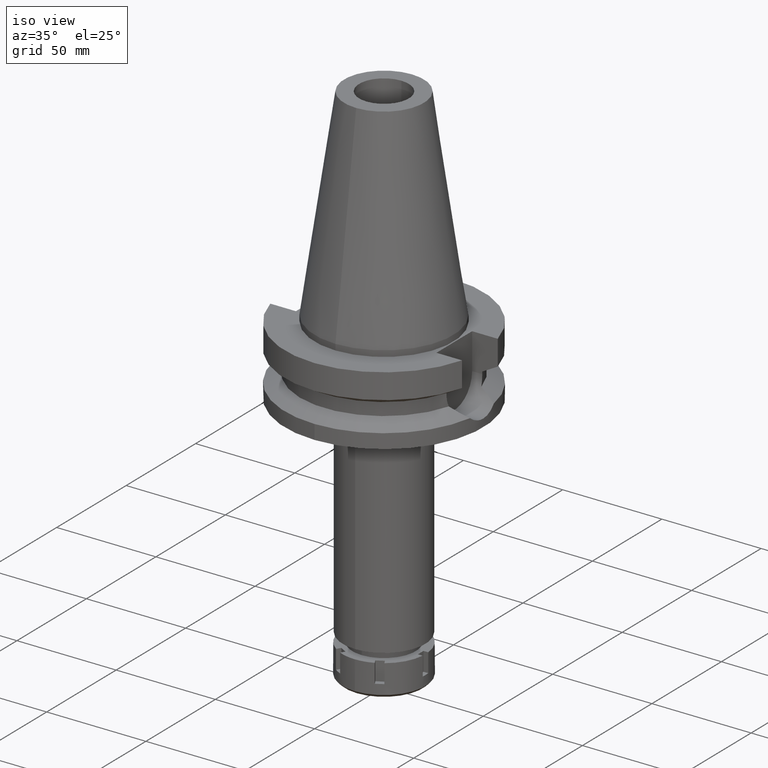
[diagram: clean part render]
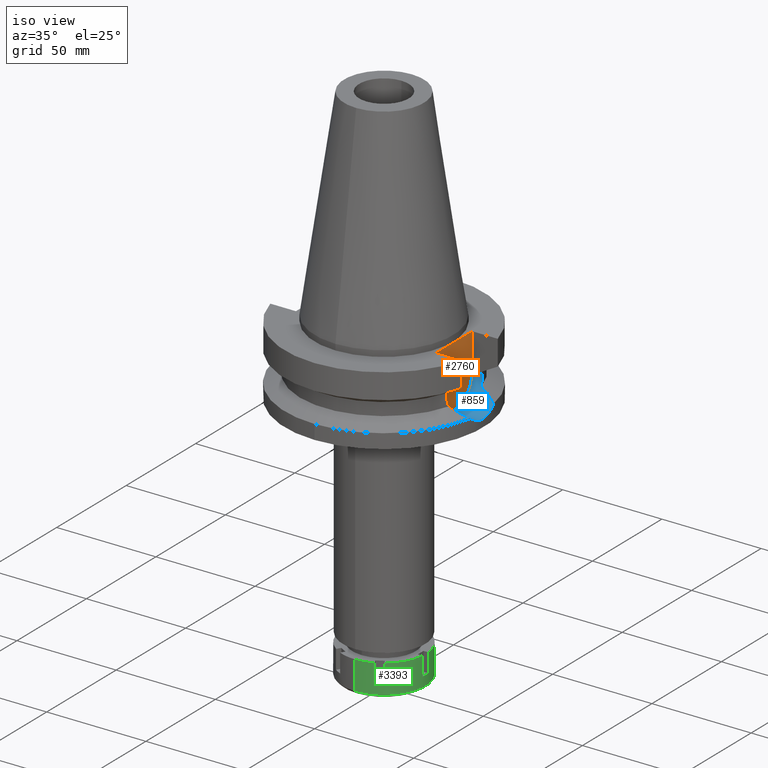
[diagram: same view with three faces highlighted in distinct colors, each labeled with its STEP entity id]
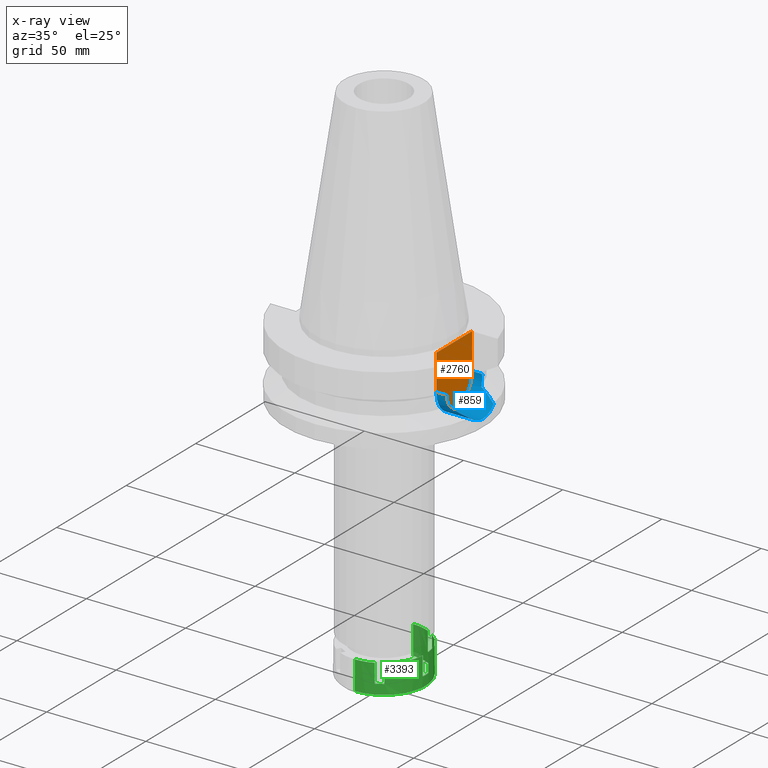
[diagram: x-ray of the same camera — body ghosted, the three highlighted faces saturated]
A machine part, iso view with three faces highlighted in distinct colors.
The next image is the same camera in x-ray (body ghosted, the three faces saturated) — at least one of them is partly hidden behind the body in this view.
Their STEP definitions:

[orange] entity #2760 — the highlighted planar face has unit normal (1, 0, 0).
#92 = CARTESIAN_POINT ( 'NONE',  ( 35.39999999999999858, -12.84999999999999964, -21.14999999999999858 ) ) ;
#288 = EDGE_CURVE ( 'NONE', #3317, #1250, #2770, .T. ) ;
#298 = AXIS2_PLACEMENT_3D ( 'NONE', #1757, #1990, #3159 ) ;
#355 = AXIS2_PLACEMENT_3D ( 'NONE', #2820, #3656, #1468 ) ;
#390 = EDGE_LOOP ( 'NONE', ( #3395, #2490, #2419, #2441 ) ) ;
#733 = EDGE_CURVE ( 'NONE', #1685, #1123, #2659, .T. ) ;
#872 = VECTOR ( 'NONE', #2377, 1000.000000000000000 ) ;
#1123 = VERTEX_POINT ( 'NONE', #2656 ) ;
#1250 = VERTEX_POINT ( 'NONE', #2449 ) ;
#1468 = DIRECTION ( 'NONE',  ( 0.0000000000000000000, 1.000000000000000000, 0.0000000000000000000 ) ) ;
#1685 = VERTEX_POINT ( 'NONE', #3187 ) ;
#1727 = PLANE ( 'NONE',  #355 ) ;
#1757 = CARTESIAN_POINT ( 'NONE',  ( 35.39999999999999858, 0.0000000000000000000, -21.14999999999999858 ) ) ;
#1923 = EDGE_CURVE ( 'NONE', #3317, #1123, #2798, .T. ) ;
#1990 = DIRECTION ( 'NONE',  ( -1.000000000000000000, 0.0000000000000000000, 0.0000000000000000000 ) ) ;
#2377 = DIRECTION ( 'NONE',  ( 0.0000000000000000000, 0.0000000000000000000, 1.000000000000000000 ) ) ;
#2419 = ORIENTED_EDGE ( 'NONE', *, *, #288, .F. ) ;
#2441 = ORIENTED_EDGE ( 'NONE', *, *, #1923, .T. ) ;
#2445 = CARTESIAN_POINT ( 'NONE',  ( 35.39999999999999858, 12.84999999999999964, -3.000000000000000000 ) ) ;
#2449 = CARTESIAN_POINT ( 'NONE',  ( 35.39999999999999858, 12.84999999999999964, -21.14999999999999858 ) ) ;
#2490 = ORIENTED_EDGE ( 'NONE', *, *, #3332, .F. ) ;
#2656 = CARTESIAN_POINT ( 'NONE',  ( 35.39999999999999858, -12.84999999999999964, -3.000000000000000000 ) ) ;
#2659 = LINE ( 'NONE', #92, #872 ) ;
#2760 = ADVANCED_FACE ( 'NONE', ( #3147 ), #1727, .T. ) ;
#2770 = LINE ( 'NONE', #3642, #3081 ) ;
#2798 = LINE ( 'NONE', #3423, #3501 ) ;
#2820 = CARTESIAN_POINT ( 'NONE',  ( 35.39999999999999858, 0.0000000000000000000, 0.0000000000000000000 ) ) ;
#3081 = VECTOR ( 'NONE', #3327, 1000.000000000000000 ) ;
#3147 = FACE_OUTER_BOUND ( 'NONE', #390, .T. ) ;
#3159 = DIRECTION ( 'NONE',  ( 0.0000000000000000000, 1.000000000000000000, 0.0000000000000000000 ) ) ;
#3187 = CARTESIAN_POINT ( 'NONE',  ( 35.39999999999999858, -12.84999999999999964, -21.14999999999999858 ) ) ;
#3219 = CIRCLE ( 'NONE', #298, 12.84999999999999964 ) ;
#3317 = VERTEX_POINT ( 'NONE', #2445 ) ;
#3327 = DIRECTION ( 'NONE',  ( 0.0000000000000000000, 0.0000000000000000000, -1.000000000000000000 ) ) ;
#3332 = EDGE_CURVE ( 'NONE', #1250, #1685, #3219, .T. ) ;
#3395 = ORIENTED_EDGE ( 'NONE', *, *, #733, .F. ) ;
#3405 = DIRECTION ( 'NONE',  ( 0.0000000000000000000, -1.000000000000000000, 0.0000000000000000000 ) ) ;
#3423 = CARTESIAN_POINT ( 'NONE',  ( 35.39999999999999858, 12.84999999999999964, -3.000000000000000000 ) ) ;
#3501 = VECTOR ( 'NONE', #3405, 1000.000000000000000 ) ;
#3642 = CARTESIAN_POINT ( 'NONE',  ( 35.39999999999999858, 12.84999999999999964, -3.000000000000000000 ) ) ;
#3656 = DIRECTION ( 'NONE',  ( 1.000000000000000000, 0.0000000000000000000, 0.0000000000000000000 ) ) ;

[blue] entity #859 — the highlighted cylindrical surface (edge-blend (fillet) strip) has radius 12.85 mm, axis along (1, 0, 0).
#4 = EDGE_CURVE ( 'NONE', #2066, #3361, #3668, .T. ) ;
#46 = CARTESIAN_POINT ( 'NONE',  ( 40.63720027269733492, 12.44499102500596699, -24.35263434037272035 ) ) ;
#52 = VECTOR ( 'NONE', #616, 1000.000000000000000 ) ;
#69 = CARTESIAN_POINT ( 'NONE',  ( 40.62483067706675399, 12.48524489601930476, -24.19332376313167998 ) ) ;
#72 = CARTESIAN_POINT ( 'NONE',  ( 44.08652366158886338, -10.82399127850445275, -28.07919682956623930 ) ) ;
#129 = EDGE_CURVE ( 'NONE', #1250, #3361, #1290, .T. ) ;
#134 = CARTESIAN_POINT ( 'NONE',  ( 49.79509525718310670, 4.521911686858223867, -33.17809616899294411 ) ) ;
#198 = CARTESIAN_POINT ( 'NONE',  ( 49.49360244385135843, 7.117060693934413429, -31.87766899412886090 ) ) ;
#211 = CARTESIAN_POINT ( 'NONE',  ( 40.85052569294000335, -11.72538061688000077, -26.40718074535000426 ) ) ;
#217 = CARTESIAN_POINT ( 'NONE',  ( 50.00000025975000284, 0.7410749818545950829, -34.00000000000000711 ) ) ;
#225 = CARTESIAN_POINT ( 'NONE',  ( 49.78849615495141734, -4.594160771162379753, -33.15068097418502191 ) ) ;
#271 = CARTESIAN_POINT ( 'NONE',  ( 40.65436025722827651, -12.39001373530014050, -24.66363152819931415 ) ) ;
#279 = AXIS2_PLACEMENT_3D ( 'NONE', #3661, #1624, #2755 ) ;
#298 = AXIS2_PLACEMENT_3D ( 'NONE', #1757, #1990, #3159 ) ;
#299 = VERTEX_POINT ( 'NONE', #211 ) ;
#331 = CARTESIAN_POINT ( 'NONE',  ( 40.85052569294000335, 11.72538061688000077, -26.40718074535000426 ) ) ;
#334 = CARTESIAN_POINT ( 'NONE',  ( 48.71889692592597498, 8.868007900456344572, -30.45890750410888614 ) ) ;
#424 = CARTESIAN_POINT ( 'NONE',  ( 49.86956621714999471, 3.608177968554155512, -33.48463145057419155 ) ) ;
#447 = CARTESIAN_POINT ( 'NONE',  ( 49.79052572487567119, -4.572062755420076563, -33.15911172841049392 ) ) ;
#473 = CYLINDRICAL_SURFACE ( 'NONE', #279, 12.85000000000000320 ) ;
#477 = CARTESIAN_POINT ( 'NONE',  ( 49.73972721055591251, 5.127761864821858140, -32.94800215639804009 ) ) ;
#484 = ORIENTED_EDGE ( 'NONE', *, *, #1984, .T. ) ;
#497 = CARTESIAN_POINT ( 'NONE',  ( 49.79239168047003972, 4.551645640510676216, -33.16686574697915546 ) ) ;
#511 = ORIENTED_EDGE ( 'NONE', *, *, #3387, .F. ) ;
#556 = CARTESIAN_POINT ( 'NONE',  ( 46.86891036847952563, 9.761100970900653095, -29.51020943516141060 ) ) ;
#611 = ORIENTED_EDGE ( 'NONE', *, *, #4, .T. ) ;
#616 = DIRECTION ( 'NONE',  ( -1.000000000000000000, -3.510427359434999885E-14, 0.0000000000000000000 ) ) ;
#641 = VERTEX_POINT ( 'NONE', #1266 ) ;
#694 = CARTESIAN_POINT ( 'NONE',  ( 50.00000025974999573, 1.774145817924999966E-14, -34.00000114470000057 ) ) ;
#724 = B_SPLINE_CURVE_WITH_KNOTS ( 'NONE', 3,
 ( #2347, #1509, #2937, #2640, #72, #1223, #2080, #3490, #936, #3211, #806, #2517, #828, #1903, #3350 ),
 .UNSPECIFIED., .F., .F.,
 ( 4, 2, 2, 1, 1, 1, 2, 2, 4 ),
 ( 0.0000000000000000000, 0.2500000000000003331, 0.3750000000000014988, 0.4375000000000023315, 0.4687500000000027756, 0.4843750000000040523, 0.4921875000000048295, 0.5000000000000055511, 1.000000000000000000 ),
 .UNSPECIFIED. ) ;
#800 = CARTESIAN_POINT ( 'NONE',  ( 50.00000025974999573, 1.774145817924999966E-14, -34.00000114470000057 ) ) ;
#806 = CARTESIAN_POINT ( 'NONE',  ( 45.45376346329539530, -10.33741897416011746, -28.78285341246331797 ) ) ;
#828 = CARTESIAN_POINT ( 'NONE',  ( 46.91867690740803454, -9.778675819256957169, -29.53630061612208024 ) ) ;
#859 = ADVANCED_FACE ( 'NONE', ( #2808 ), #473, .F. ) ;
#868 = CARTESIAN_POINT ( 'NONE',  ( 40.54944812473202376, -12.72805978480942457, -22.93052269365497864 ) ) ;
#878 = CARTESIAN_POINT ( 'NONE',  ( 45.65477777075565058, 10.26033523586332130, -28.88624133032739749 ) ) ;
#936 = CARTESIAN_POINT ( 'NONE',  ( 45.34795488205713809, -10.37743536144881595, -28.72843099741480088 ) ) ;
#977 = EDGE_CURVE ( 'NONE', #1702, #2066, #2129, .T. ) ;
#987 = CARTESIAN_POINT ( 'NONE',  ( 40.51083188481999287, 12.84999999999999964, -22.03309742073675537 ) ) ;
#1012 = CARTESIAN_POINT ( 'NONE',  ( 49.77979861138366857, -4.687619708294853638, -33.11458520024217478 ) ) ;
#1031 = CARTESIAN_POINT ( 'NONE',  ( 49.75680721488465252, -4.924372200396224031, -33.01927248158009576 ) ) ;
#1038 = CARTESIAN_POINT ( 'NONE',  ( 49.93043543702997766, 2.648726359074033088, -33.73005955313167448 ) ) ;
#1046 = CARTESIAN_POINT ( 'NONE',  ( 49.49360748612500771, -7.117022366528876987, -31.87769826589144984 ) ) ;
#1087 = CARTESIAN_POINT ( 'NONE',  ( 50.00000025975000995, -0.7410656251115338433, -34.00000000000000000 ) ) ;
#1113 = CARTESIAN_POINT ( 'NONE',  ( 40.51083188481999997, -12.84999999999999964, -21.14999999999999858 ) ) ;
#1202 = CARTESIAN_POINT ( 'NONE',  ( 48.13354550996827186, 9.173298141217253843, -30.15909107443265569 ) ) ;
#1223 = CARTESIAN_POINT ( 'NONE',  ( 44.62925775102691972, -10.63815907006330619, -28.35864658413995798 ) ) ;
#1238 = DIRECTION ( 'NONE',  ( 1.000000000000000000, -3.336643826789999529E-14, 0.0000000000000000000 ) ) ;
#1250 = VERTEX_POINT ( 'NONE', #2449 ) ;
#1262 = EDGE_CURVE ( 'NONE', #641, #3277, #2401, .T. ) ;
#1266 = CARTESIAN_POINT ( 'NONE',  ( 49.26250064874000145, -8.556052234130000045, -30.73730776426999967 ) ) ;
#1290 = LINE ( 'NONE', #3471, #2898 ) ;
#1326 = CARTESIAN_POINT ( 'NONE',  ( 49.79885500147746313, 4.480269389603221519, -33.19370440293146629 ) ) ;
#1364 = CARTESIAN_POINT ( 'NONE',  ( 49.38719044865590035, 7.838135701933852673, -31.37800184651396407 ) ) ;
#1436 = CARTESIAN_POINT ( 'NONE',  ( 45.52095493356967637, 10.31180833772056005, -28.81741746125721804 ) ) ;
#1454 = CARTESIAN_POINT ( 'NONE',  ( 40.74530521662314442, 12.08734525800560355, -25.53455946903086726 ) ) ;
#1492 = CARTESIAN_POINT ( 'NONE',  ( 45.58852645989720997, 10.28587793574028986, -28.85216961808750824 ) ) ;
#1509 = CARTESIAN_POINT ( 'NONE',  ( 41.72591166032965759, -11.52209110050590013, -26.86058858319618636 ) ) ;
#1524 = CARTESIAN_POINT ( 'NONE',  ( 40.60613812303787995, 12.54578004800032431, -23.92968102609641079 ) ) ;
#1579 = CARTESIAN_POINT ( 'NONE',  ( 40.61157027093148031, 12.52820949425047026, -24.00859467745382148 ) ) ;
#1600 = CARTESIAN_POINT ( 'NONE',  ( 49.91305551306805910, -3.031270827038059501, -33.66153124133568042 ) ) ;
#1624 = DIRECTION ( 'NONE',  ( 1.000000000000000000, 0.0000000000000000000, 0.0000000000000000000 ) ) ;
#1672 = CARTESIAN_POINT ( 'NONE',  ( 49.26250064874000145, -8.556052234130000045, -30.73730776426999967 ) ) ;
#1685 = VERTEX_POINT ( 'NONE', #3187 ) ;
#1694 = ORIENTED_EDGE ( 'NONE', *, *, #1262, .T. ) ;
#1702 = VERTEX_POINT ( 'NONE', #2162 ) ;
#1733 = CARTESIAN_POINT ( 'NONE',  ( 47.19289684631613824, 9.616051868880671094, -29.67652928504717025 ) ) ;
#1751 = CARTESIAN_POINT ( 'NONE',  ( 49.26250064874000145, 8.556052234130000045, -30.73730776426999967 ) ) ;
#1757 = CARTESIAN_POINT ( 'NONE',  ( 35.39999999999999858, 0.0000000000000000000, -21.14999999999999858 ) ) ;
#1766 = CARTESIAN_POINT ( 'NONE',  ( 40.68244639104836580, 12.29666286615228721, -24.88711474765173648 ) ) ;
#1768 = CARTESIAN_POINT ( 'NONE',  ( 42.60298043635962983, 11.31841078810769829, -27.31486803500052574 ) ) ;
#1807 = CARTESIAN_POINT ( 'NONE',  ( 40.60092910951219380, 12.56261850439502226, -23.85257851101207649 ) ) ;
#1850 = CARTESIAN_POINT ( 'NONE',  ( 49.79347438492521860, 4.539752812145889216, -33.17136368397172674 ) ) ;
#1878 = CARTESIAN_POINT ( 'NONE',  ( 49.78971523551513911, -4.580896941077138962, -33.15574468994640256 ) ) ;
#1884 = CARTESIAN_POINT ( 'NONE',  ( 49.84837068522750059, 3.895670753622818339, -33.39815263638099196 ) ) ;
#1892 = CARTESIAN_POINT ( 'NONE',  ( 49.66531577319440061, -5.772453008917752371, -32.63570655734203996 ) ) ;
#1903 = CARTESIAN_POINT ( 'NONE',  ( 48.17421731096948179, -9.180580984649372667, -30.17995623842555730 ) ) ;
#1940 = CARTESIAN_POINT ( 'NONE',  ( 40.85052569294000335, 11.72538061688000077, -26.40718074535000426 ) ) ;
#1956 = CARTESIAN_POINT ( 'NONE',  ( 40.51818735908894098, -12.82722126774884330, -22.03688626222736602 ) ) ;
#1968 = CARTESIAN_POINT ( 'NONE',  ( 44.15277387009012244, 10.83389904101250600, -28.11372406847988259 ) ) ;
#1984 = EDGE_CURVE ( 'NONE', #2259, #299, #3592, .T. ) ;
#1990 = DIRECTION ( 'NONE',  ( -1.000000000000000000, 0.0000000000000000000, 0.0000000000000000000 ) ) ;
#1992 = CARTESIAN_POINT ( 'NONE',  ( 40.51083188482000708, -12.85000000000000320, -21.59155125908098327 ) ) ;
#2036 = CARTESIAN_POINT ( 'NONE',  ( 40.79434733663426726, 11.92110265460875951, -25.97065107314824317 ) ) ;
#2066 = VERTEX_POINT ( 'NONE', #1940 ) ;
#2080 = CARTESIAN_POINT ( 'NONE',  ( 44.89588290465827214, -10.54427413037512906, -28.49587143876511419 ) ) ;
#2129 = B_SPLINE_CURVE_WITH_KNOTS ( 'NONE', 3,
 ( #1751, #334, #1202, #1733, #556, #3106, #3432, #2260, #878, #1492, #2277, #1436, #1968, #1768, #3416 ),
 .UNSPECIFIED., .F., .F.,
 ( 4, 2, 2, 1, 1, 1, 2, 2, 4 ),
 ( 0.0000000000000000000, 0.2499999999999670264, 0.3749999999999510947, 0.4374999999999431011, 0.4687499999999392153, 0.4843749999999383826, 0.4921874999999378275, 0.4999999999999372724, 1.000000000000000000 ),
 .UNSPECIFIED. ) ;
#2162 = CARTESIAN_POINT ( 'NONE',  ( 49.26250064874000145, 8.556052234130000045, -30.73730776426999967 ) ) ;
#2166 = CARTESIAN_POINT ( 'NONE',  ( 49.86088866505888717, -3.802344464582331440, -33.45151160997993145 ) ) ;
#2193 = B_SPLINE_CURVE_WITH_KNOTS ( 'NONE', 3,
 ( #2459, #217, #3043, #1038, #3060, #424, #1884, #2999, #2775, #1326, #134, #1850, #497, #3316, #477, #2702, #198, #1364, #3259 ),
 .UNSPECIFIED., .F., .F.,
 ( 4, 2, 2, 1, 1, 1, 1, 1, 2, 2, 2, 4 ),
 ( 0.0000000000000000000, 0.2499999999999408806, 0.3749999999999113487, 0.4374999999998964162, 0.4687499999998889777, 0.4843749999998849254, 0.4921874999998825384, 0.4960937499998818723, 0.4980468749998815947, 0.4999999999998813727, 0.7499999999999406031, 1.000000000000000000 ),
 .UNSPECIFIED. ) ;
#2216 = EDGE_CURVE ( 'NONE', #3277, #1702, #2193, .T. ) ;
#2222 = CARTESIAN_POINT ( 'NONE',  ( 49.62581554086832369, -6.100699783330162163, -32.46623685312815155 ) ) ;
#2249 = CARTESIAN_POINT ( 'NONE',  ( 40.59188576338534915, -12.59181613888018880, -23.71309950369803587 ) ) ;
#2259 = VERTEX_POINT ( 'NONE', #2417 ) ;
#2260 = CARTESIAN_POINT ( 'NONE',  ( 45.80850800889532337, 10.20045534850263813, -28.96529400805786025 ) ) ;
#2277 = CARTESIAN_POINT ( 'NONE',  ( 45.54427738086176447, 10.30287947436299945, -28.82941249520358795 ) ) ;
#2284 = CARTESIAN_POINT ( 'NONE',  ( 40.59544857123437112, -12.58031941218523286, -23.76894563300123053 ) ) ;
#2314 = CARTESIAN_POINT ( 'NONE',  ( 40.51083188481999997, 12.84999999999999964, -21.14999999999999858 ) ) ;
#2347 = CARTESIAN_POINT ( 'NONE',  ( 40.85052569294000335, -11.72538061688000077, -26.40718074535000426 ) ) ;
#2389 = CARTESIAN_POINT ( 'NONE',  ( 40.60257244295487311, 12.55730800210168496, -23.87713024258036754 ) ) ;
#2401 = B_SPLINE_CURVE_WITH_KNOTS ( 'NONE', 3,
 ( #1672, #3010, #1046, #2222, #1892, #2767, #2784, #1031, #3082, #1012, #3325, #225, #1878, #447, #3290, #2166, #1600, #3637, #1087, #800 ),
 .UNSPECIFIED., .F., .F.,
 ( 4, 2, 2, 2, 1, 1, 1, 1, 2, 2, 2, 4 ),
 ( 0.0000000000000000000, 0.2499999999999404365, 0.3749999999999105715, 0.4374999999998954725, 0.4687499999998887557, 0.4843749999998845923, 0.4921874999998832045, 0.4960937499998826494, 0.4980468749998828715, 0.4999999999998832045, 0.7499999999999416023, 1.000000000000000000 ),
 .UNSPECIFIED. ) ;
#2417 = CARTESIAN_POINT ( 'NONE',  ( 40.51083188481999997, -12.84999999999999964, -21.14999999999999858 ) ) ;
#2449 = CARTESIAN_POINT ( 'NONE',  ( 35.39999999999999858, 12.84999999999999964, -21.14999999999999858 ) ) ;
#2459 = CARTESIAN_POINT ( 'NONE',  ( 50.00000025974999573, 1.774145817924999966E-14, -34.00000114470000057 ) ) ;
#2477 = ORIENTED_EDGE ( 'NONE', *, *, #2216, .T. ) ;
#2493 = EDGE_CURVE ( 'NONE', #299, #641, #724, .T. ) ;
#2517 = CARTESIAN_POINT ( 'NONE',  ( 45.47364822759700331, -10.32986049036476572, -28.79308085105692072 ) ) ;
#2556 = CARTESIAN_POINT ( 'NONE',  ( 40.54025378189582085, -12.75731467226962046, -22.70686882111924731 ) ) ;
#2571 = CARTESIAN_POINT ( 'NONE',  ( 40.51083188481999997, -12.84999999999999964, -21.14999999999999858 ) ) ;
#2582 = CARTESIAN_POINT ( 'NONE',  ( 40.66327750826377496, 12.35976744503744662, -24.67240287687921452 ) ) ;
#2640 = CARTESIAN_POINT ( 'NONE',  ( 43.71205589239633582, -10.94529851844949953, -27.88622673543954278 ) ) ;
#2665 = ORIENTED_EDGE ( 'NONE', *, *, #2493, .T. ) ;
#2702 = CARTESIAN_POINT ( 'NONE',  ( 49.66987082480136451, 5.762061220520697802, -32.66234491577243659 ) ) ;
#2755 = DIRECTION ( 'NONE',  ( 0.0000000000000000000, 0.0000000000000000000, -1.000000000000000000 ) ) ;
#2767 = CARTESIAN_POINT ( 'NONE',  ( 49.71771244280093782, -5.301720187127436645, -32.85659238518145742 ) ) ;
#2775 = CARTESIAN_POINT ( 'NONE',  ( 49.80628532616985638, 4.396934166595673155, -33.22451764728783274 ) ) ;
#2784 = CARTESIAN_POINT ( 'NONE',  ( 49.73403571952268720, -5.148397096957767261, -32.92466732320522738 ) ) ;
#2808 = FACE_OUTER_BOUND ( 'NONE', #3201, .T. ) ;
#2816 = CARTESIAN_POINT ( 'NONE',  ( 40.59737061726059437, -12.57411364517637331, -23.79856269430915816 ) ) ;
#2852 = CARTESIAN_POINT ( 'NONE',  ( 40.57496242610245929, -12.64633064314174860, -23.43373649586409613 ) ) ;
#2898 = VECTOR ( 'NONE', #1238, 1000.000000000000000 ) ;
#2937 = CARTESIAN_POINT ( 'NONE',  ( 42.55071745611744660, -11.29929319511106023, -27.28707702801668233 ) ) ;
#2963 = ORIENTED_EDGE ( 'NONE', *, *, #977, .T. ) ;
#2990 = CARTESIAN_POINT ( 'NONE',  ( 40.51083188481999997, 12.84999999999999964, -21.14999999999999858 ) ) ;
#2999 = CARTESIAN_POINT ( 'NONE',  ( 49.82078931996939275, 4.230072290529120593, -33.28453423720266358 ) ) ;
#3010 = CARTESIAN_POINT ( 'NONE',  ( 49.38719230594260523, -7.838125008374380975, -31.37801138982431581 ) ) ;
#3041 = ORIENTED_EDGE ( 'NONE', *, *, #129, .F. ) ;
#3043 = CARTESIAN_POINT ( 'NONE',  ( 49.98260905406998234, 1.500665619138225049, -33.93573820480884962 ) ) ;
#3060 = CARTESIAN_POINT ( 'NONE',  ( 49.90869642992999644, 3.032807479149022267, -33.64331436775012918 ) ) ;
#3082 = CARTESIAN_POINT ( 'NONE',  ( 49.76776460763550602, -4.813848197125325079, -33.06469792018418019 ) ) ;
#3094 = CARTESIAN_POINT ( 'NONE',  ( 40.58662774857591415, -12.60877356366929369, -23.62931612648331026 ) ) ;
#3106 = CARTESIAN_POINT ( 'NONE',  ( 46.36727526679569422, 9.974179417351670907, -29.25251000872249207 ) ) ;
#3145 = CARTESIAN_POINT ( 'NONE',  ( 40.73816962952578535, -12.11682243061658859, -25.53412644538607523 ) ) ;
#3159 = DIRECTION ( 'NONE',  ( 0.0000000000000000000, 1.000000000000000000, 0.0000000000000000000 ) ) ;
#3187 = CARTESIAN_POINT ( 'NONE',  ( 35.39999999999999858, -12.84999999999999964, -21.14999999999999858 ) ) ;
#3201 = EDGE_LOOP ( 'NONE', ( #2963, #611, #3041, #3355, #511, #484, #2665, #1694, #2477 ) ) ;
#3211 = CARTESIAN_POINT ( 'NONE',  ( 45.41149930443869920, -10.35343463059610514, -28.76111513600022462 ) ) ;
#3219 = CIRCLE ( 'NONE', #298, 12.84999999999999964 ) ;
#3248 = CARTESIAN_POINT ( 'NONE',  ( 40.54025138676031759, 12.75862549541255042, -22.93152005434224705 ) ) ;
#3259 = CARTESIAN_POINT ( 'NONE',  ( 49.26250064874000145, 8.556052234130000045, -30.73730776426999967 ) ) ;
#3277 = VERTEX_POINT ( 'NONE', #694 ) ;
#3290 = CARTESIAN_POINT ( 'NONE',  ( 49.79078946304657194, -4.569185635706867643, -33.16020745295149652 ) ) ;
#3316 = CARTESIAN_POINT ( 'NONE',  ( 49.79170874925432599, 4.559128567776709495, -33.16402800635088965 ) ) ;
#3325 = CARTESIAN_POINT ( 'NONE',  ( 49.78562820797583299, -4.625197376720444176, -33.13877319678256583 ) ) ;
#3332 = EDGE_CURVE ( 'NONE', #1250, #1685, #3219, .T. ) ;
#3350 = CARTESIAN_POINT ( 'NONE',  ( 49.26250064874000145, -8.556052234130000045, -30.73730776426999967 ) ) ;
#3355 = ORIENTED_EDGE ( 'NONE', *, *, #3332, .T. ) ;
#3361 = VERTEX_POINT ( 'NONE', #2314 ) ;
#3386 = CARTESIAN_POINT ( 'NONE',  ( 40.85052569294000335, -11.72538061688000077, -26.40718074535000426 ) ) ;
#3387 = EDGE_CURVE ( 'NONE', #2259, #1685, #3421, .T. ) ;
#3416 = CARTESIAN_POINT ( 'NONE',  ( 40.85052569294000335, 11.72538061688000077, -26.40718074535000426 ) ) ;
#3421 = LINE ( 'NONE', #2571, #52 ) ;
#3432 = CARTESIAN_POINT ( 'NONE',  ( 46.11254386972156283, 10.07959440270284723, -29.12160614239724765 ) ) ;
#3471 = CARTESIAN_POINT ( 'NONE',  ( 35.39999999999999858, 12.84999999999999964, -21.14999999999999858 ) ) ;
#3490 = CARTESIAN_POINT ( 'NONE',  ( 45.19864727449142094, -10.43327437534391677, -28.65163018592970445 ) ) ;
#3592 = B_SPLINE_CURVE_WITH_KNOTS ( 'NONE', 3,
 ( #1113, #1992, #1956, #2556, #868, #3669, #2852, #3094, #2249, #2284, #2816, #271, #3145, #3386 ),
 .UNSPECIFIED., .F., .F.,
 ( 4, 2, 2, 1, 1, 2, 2, 4 ),
 ( 0.0000000000000000000, 0.2499999999999948375, 0.3749999999999922839, 0.4374999999999911182, 0.4687499999999904521, 0.4843749999999901745, 0.4999999999999898970, 1.000000000000000000 ),
 .UNSPECIFIED. ) ;
#3637 = CARTESIAN_POINT ( 'NONE',  ( 49.98261131041361693, -1.500624886538419744, -33.93573978226026355 ) ) ;
#3661 = CARTESIAN_POINT ( 'NONE',  ( 35.39999999999999858, 0.0000000000000000000, -21.14999999999999858 ) ) ;
#3668 = B_SPLINE_CURVE_WITH_KNOTS ( 'NONE', 3,
 ( #331, #2036, #1454, #1766, #2582, #46, #69, #1579, #1524, #2389, #1807, #3248, #987, #2990 ),
 .UNSPECIFIED., .F., .F.,
 ( 4, 2, 2, 1, 1, 2, 2, 4 ),
 ( 0.0000000000000000000, 0.2499999999999920619, 0.3749999999999889533, 0.4374999999999874545, 0.4687499999999865663, 0.4843749999999859557, 0.4999999999999853451, 1.000000000000000000 ),
 .UNSPECIFIED. ) ;
#3669 = CARTESIAN_POINT ( 'NONE',  ( 40.56599794183718899, -12.67508828627306450, -23.26599944996664959 ) ) ;

[green] entity #3393 — the highlighted cylindrical surface (partial cylindrical patch) has radius 21 mm, axis along (0, 0, -1).
#7 = CARTESIAN_POINT ( 'NONE',  ( 0.0000000000000000000, -21.00000000000000000, -14.50000000000000000 ) ) ;
#9 = VERTEX_POINT ( 'NONE', #973 ) ;
#13 = DIRECTION ( 'NONE',  ( 0.0000000000000000000, 0.0000000000000000000, 1.000000000000000000 ) ) ;
#45 = ORIENTED_EDGE ( 'NONE', *, *, #3617, .F. ) ;
#96 = ORIENTED_EDGE ( 'NONE', *, *, #1422, .T. ) ;
#112 = AXIS2_PLACEMENT_3D ( 'NONE', #1979, #3096, #3115 ) ;
#115 = DIRECTION ( 'NONE',  ( 0.0000000000000000000, 0.0000000000000000000, -1.000000000000000000 ) ) ;
#116 = AXIS2_PLACEMENT_3D ( 'NONE', #1272, #1575, #1614 ) ;
#136 = DIRECTION ( 'NONE',  ( 0.4152486510768949035, -0.9097079519157886818, 0.0000000000000000000 ) ) ;
#149 = AXIS2_PLACEMENT_3D ( 'NONE', #3009, #2151, #780 ) ;
#153 = EDGE_CURVE ( 'NONE', #437, #3178, #3232, .T. ) ;
#165 = VERTEX_POINT ( 'NONE', #1540 ) ;
#174 = CARTESIAN_POINT ( 'NONE',  ( 12.18432328774999895, 17.10386699022999935, 0.0000000000000000000 ) ) ;
#224 = EDGE_CURVE ( 'NONE', #764, #2058, #3069, .T. ) ;
#244 = ORIENTED_EDGE ( 'NONE', *, *, #617, .F. ) ;
#259 = DIRECTION ( 'NONE',  ( 0.4152486510768949035, 0.9097079519157886818, 0.0000000000000000000 ) ) ;
#404 = CIRCLE ( 'NONE', #751, 21.00000000000000711 ) ;
#433 = EDGE_CURVE ( 'NONE', #1845, #2829, #2965, .T. ) ;
#437 = VERTEX_POINT ( 'NONE', #3008 ) ;
#457 = AXIS2_PLACEMENT_3D ( 'NONE', #1478, #1736, #1151 ) ;
#517 = DIRECTION ( 'NONE',  ( 0.0000000000000000000, 0.0000000000000000000, 1.000000000000000000 ) ) ;
#521 = ORIENTED_EDGE ( 'NONE', *, *, #1117, .T. ) ;
#547 = CARTESIAN_POINT ( 'NONE',  ( 8.720221672615000585, -19.10386699022999935, -9.500000000000000000 ) ) ;
#571 = CARTESIAN_POINT ( 'NONE',  ( 0.0000000000000000000, 0.0000000000000000000, -9.500000000000000000 ) ) ;
#602 = EDGE_CURVE ( 'NONE', #2881, #1750, #3322, .T. ) ;
#617 = EDGE_CURVE ( 'NONE', #1845, #9, #885, .T. ) ;
#666 = ORIENTED_EDGE ( 'NONE', *, *, #3236, .T. ) ;
#690 = VERTEX_POINT ( 'NONE', #994 ) ;
#718 = CARTESIAN_POINT ( 'NONE',  ( 0.0000000000000000000, 0.0000000000000000000, 0.0000000000000000000 ) ) ;
#730 = CARTESIAN_POINT ( 'NONE',  ( 0.0000000000000000000, 0.0000000000000000000, 0.0000000000000000000 ) ) ;
#751 = AXIS2_PLACEMENT_3D ( 'NONE', #571, #3426, #259 ) ;
#764 = VERTEX_POINT ( 'NONE', #174 ) ;
#780 = DIRECTION ( 'NONE',  ( 0.9954545219222313834, 0.09523809523810303213, 0.0000000000000000000 ) ) ;
#829 = DIRECTION ( 'NONE',  ( 0.0000000000000000000, 0.0000000000000000000, -1.000000000000000000 ) ) ;
#857 = VERTEX_POINT ( 'NONE', #3036 ) ;
#858 = ORIENTED_EDGE ( 'NONE', *, *, #153, .F. ) ;
#885 = LINE ( 'NONE', #2022, #1662 ) ;
#959 = AXIS2_PLACEMENT_3D ( 'NONE', #2551, #3695, #1798 ) ;
#973 = CARTESIAN_POINT ( 'NONE',  ( 0.0000000000000000000, 21.00000000000000000, -14.50000000000000000 ) ) ;
#992 = VECTOR ( 'NONE', #2951, 1000.000000000000000 ) ;
#994 = CARTESIAN_POINT ( 'NONE',  ( 20.90454496036999998, -2.000000000000000000, -9.500000000000000000 ) ) ;
#1022 = DIRECTION ( 'NONE',  ( 0.0000000000000000000, 0.0000000000000000000, 1.000000000000000000 ) ) ;
#1034 = CARTESIAN_POINT ( 'NONE',  ( 12.18432328774999895, 17.10386699022999935, 0.0000000000000000000 ) ) ;
#1048 = VERTEX_POINT ( 'NONE', #2935 ) ;
#1061 = CARTESIAN_POINT ( 'NONE',  ( 0.0000000000000000000, 21.00000000000000000, 0.0000000000000000000 ) ) ;
#1098 = CARTESIAN_POINT ( 'NONE',  ( 12.18432328774999895, 17.10386699022999935, -9.500000000000000000 ) ) ;
#1100 = CARTESIAN_POINT ( 'NONE',  ( 8.720221672615000585, 19.10386699022999935, 0.0000000000000000000 ) ) ;
#1117 = EDGE_CURVE ( 'NONE', #764, #165, #3323, .T. ) ;
#1151 = DIRECTION ( 'NONE',  ( 0.9954545219222313834, -0.09523809523810303213, 0.0000000000000000000 ) ) ;
#1211 = ORIENTED_EDGE ( 'NONE', *, *, #2456, .F. ) ;
#1260 = CARTESIAN_POINT ( 'NONE',  ( 8.720221672615000585, -19.10386699022999935, 0.0000000000000000000 ) ) ;
#1272 = CARTESIAN_POINT ( 'NONE',  ( 0.0000000000000000000, 0.0000000000000000000, -14.50000000000000000 ) ) ;
#1286 = LINE ( 'NONE', #2177, #3635 ) ;
#1289 = CIRCLE ( 'NONE', #149, 20.99999999999999289 ) ;
#1296 = ORIENTED_EDGE ( 'NONE', *, *, #2577, .T. ) ;
#1327 = ORIENTED_EDGE ( 'NONE', *, *, #2828, .F. ) ;
#1362 = AXIS2_PLACEMENT_3D ( 'NONE', #718, #2972, #2393 ) ;
#1394 = VERTEX_POINT ( 'NONE', #7 ) ;
#1422 = EDGE_CURVE ( 'NONE', #1423, #2058, #404, .T. ) ;
#1423 = VERTEX_POINT ( 'NONE', #2594 ) ;
#1439 = FACE_OUTER_BOUND ( 'NONE', #3070, .T. ) ;
#1449 = CARTESIAN_POINT ( 'NONE',  ( 8.720221672615000585, 19.10386699022999935, -9.500000000000000000 ) ) ;
#1478 = CARTESIAN_POINT ( 'NONE',  ( 0.0000000000000000000, 0.0000000000000000000, 0.0000000000000000000 ) ) ;
#1484 = VECTOR ( 'NONE', #2527, 1000.000000000000000 ) ;
#1536 = VECTOR ( 'NONE', #13, 1000.000000000000000 ) ;
#1540 = CARTESIAN_POINT ( 'NONE',  ( 20.90454496036999998, 2.000000000000000000, 0.0000000000000000000 ) ) ;
#1575 = DIRECTION ( 'NONE',  ( 0.0000000000000000000, 0.0000000000000000000, 1.000000000000000000 ) ) ;
#1583 = DIRECTION ( 'NONE',  ( 0.0000000000000000000, 0.0000000000000000000, -1.000000000000000000 ) ) ;
#1614 = DIRECTION ( 'NONE',  ( 0.0000000000000000000, -1.000000000000000000, 0.0000000000000000000 ) ) ;
#1662 = VECTOR ( 'NONE', #3158, 1000.000000000000000 ) ;
#1725 = AXIS2_PLACEMENT_3D ( 'NONE', #1841, #1583, #2638 ) ;
#1734 = CARTESIAN_POINT ( 'NONE',  ( 12.18432328774999895, -17.10386699022999935, -9.500000000000000000 ) ) ;
#1736 = DIRECTION ( 'NONE',  ( 0.0000000000000000000, 0.0000000000000000000, -1.000000000000000000 ) ) ;
#1750 = VERTEX_POINT ( 'NONE', #3320 ) ;
#1798 = DIRECTION ( 'NONE',  ( 0.0000000000000000000, -1.000000000000000000, 0.0000000000000000000 ) ) ;
#1801 = CIRCLE ( 'NONE', #112, 21.00000000000000711 ) ;
#1826 = ORIENTED_EDGE ( 'NONE', *, *, #3240, .T. ) ;
#1841 = CARTESIAN_POINT ( 'NONE',  ( 0.0000000000000000000, 0.0000000000000000000, 0.0000000000000000000 ) ) ;
#1845 = VERTEX_POINT ( 'NONE', #1061 ) ;
#1910 = VECTOR ( 'NONE', #517, 1000.000000000000000 ) ;
#1979 = CARTESIAN_POINT ( 'NONE',  ( 0.0000000000000000000, 0.0000000000000000000, -9.500000000000000000 ) ) ;
#2022 = CARTESIAN_POINT ( 'NONE',  ( 0.0000000000000000000, 21.00000000000000000, 0.0000000000000000000 ) ) ;
#2042 = CYLINDRICAL_SURFACE ( 'NONE', #959, 21.00000000000000000 ) ;
#2058 = VERTEX_POINT ( 'NONE', #1098 ) ;
#2120 = LINE ( 'NONE', #2157, #2925 ) ;
#2151 = DIRECTION ( 'NONE',  ( 0.0000000000000000000, 0.0000000000000000000, -1.000000000000000000 ) ) ;
#2157 = CARTESIAN_POINT ( 'NONE',  ( 20.90454496036999998, -2.000000000000000000, 0.0000000000000000000 ) ) ;
#2177 = CARTESIAN_POINT ( 'NONE',  ( 0.0000000000000000000, -21.00000000000000000, 0.0000000000000000000 ) ) ;
#2196 = CARTESIAN_POINT ( 'NONE',  ( 20.90454496036999998, 2.000000000000000000, -9.500000000000000000 ) ) ;
#2286 = CARTESIAN_POINT ( 'NONE',  ( 20.90454496036999998, -2.000000000000000000, 0.0000000000000000000 ) ) ;
#2294 = CARTESIAN_POINT ( 'NONE',  ( 0.0000000000000000000, -21.00000000000000000, 0.0000000000000000000 ) ) ;
#2315 = EDGE_CURVE ( 'NONE', #857, #165, #3573, .T. ) ;
#2316 = ORIENTED_EDGE ( 'NONE', *, *, #224, .F. ) ;
#2352 = ORIENTED_EDGE ( 'NONE', *, *, #2315, .F. ) ;
#2393 = DIRECTION ( 'NONE',  ( 0.0000000000000000000, 1.000000000000000000, 0.0000000000000000000 ) ) ;
#2456 = EDGE_CURVE ( 'NONE', #1048, #1750, #2880, .T. ) ;
#2474 = VERTEX_POINT ( 'NONE', #2294 ) ;
#2527 = DIRECTION ( 'NONE',  ( 0.0000000000000000000, 0.0000000000000000000, -1.000000000000000000 ) ) ;
#2534 = ORIENTED_EDGE ( 'NONE', *, *, #433, .T. ) ;
#2548 = ORIENTED_EDGE ( 'NONE', *, *, #2878, .T. ) ;
#2551 = CARTESIAN_POINT ( 'NONE',  ( 0.0000000000000000000, 0.0000000000000000000, 0.0000000000000000000 ) ) ;
#2577 = EDGE_CURVE ( 'NONE', #857, #690, #1289, .T. ) ;
#2594 = CARTESIAN_POINT ( 'NONE',  ( 8.720221672615998898, 19.10386699022999935, -9.500000000000000000 ) ) ;
#2628 = CIRCLE ( 'NONE', #116, 21.00000000000000000 ) ;
#2638 = DIRECTION ( 'NONE',  ( 0.5802058708454290725, 0.8144698566776411575, 0.0000000000000000000 ) ) ;
#2722 = VECTOR ( 'NONE', #1022, 1000.000000000000000 ) ;
#2828 = EDGE_CURVE ( 'NONE', #1423, #2829, #3671, .T. ) ;
#2829 = VERTEX_POINT ( 'NONE', #1100 ) ;
#2857 = ORIENTED_EDGE ( 'NONE', *, *, #602, .T. ) ;
#2878 = EDGE_CURVE ( 'NONE', #1048, #3178, #1801, .T. ) ;
#2880 = LINE ( 'NONE', #1734, #1536 ) ;
#2881 = VERTEX_POINT ( 'NONE', #2286 ) ;
#2925 = VECTOR ( 'NONE', #115, 1000.000000000000000 ) ;
#2935 = CARTESIAN_POINT ( 'NONE',  ( 12.18432328774999895, -17.10386699022999935, -9.500000000000000000 ) ) ;
#2951 = DIRECTION ( 'NONE',  ( 0.0000000000000000000, 0.0000000000000000000, -1.000000000000000000 ) ) ;
#2965 = CIRCLE ( 'NONE', #1362, 21.00000000000000000 ) ;
#2972 = DIRECTION ( 'NONE',  ( 0.0000000000000000000, 0.0000000000000000000, -1.000000000000000000 ) ) ;
#3008 = CARTESIAN_POINT ( 'NONE',  ( 8.720221672615000585, -19.10386699022999935, 0.0000000000000000000 ) ) ;
#3009 = CARTESIAN_POINT ( 'NONE',  ( 0.0000000000000000000, 0.0000000000000000000, -9.500000000000000000 ) ) ;
#3036 = CARTESIAN_POINT ( 'NONE',  ( 20.90454496036999998, 2.000000000000000000, -9.500000000000000000 ) ) ;
#3069 = LINE ( 'NONE', #1034, #1484 ) ;
#3070 = EDGE_LOOP ( 'NONE', ( #2316, #521, #2352, #1296, #45, #2857, #1211, #2548, #858, #666, #1826, #3353, #244, #2534, #1327, #96 ) ) ;
#3096 = DIRECTION ( 'NONE',  ( 0.0000000000000000000, 0.0000000000000000000, -1.000000000000000000 ) ) ;
#3115 = DIRECTION ( 'NONE',  ( 0.5802058708453158298, -0.8144698566777217597, 0.0000000000000000000 ) ) ;
#3158 = DIRECTION ( 'NONE',  ( 0.0000000000000000000, 0.0000000000000000000, -1.000000000000000000 ) ) ;
#3178 = VERTEX_POINT ( 'NONE', #547 ) ;
#3232 = LINE ( 'NONE', #1260, #992 ) ;
#3236 = EDGE_CURVE ( 'NONE', #437, #2474, #3340, .T. ) ;
#3240 = EDGE_CURVE ( 'NONE', #2474, #1394, #1286, .T. ) ;
#3285 = EDGE_CURVE ( 'NONE', #1394, #9, #2628, .T. ) ;
#3320 = CARTESIAN_POINT ( 'NONE',  ( 12.18432328774999895, -17.10386699022999935, 0.0000000000000000000 ) ) ;
#3322 = CIRCLE ( 'NONE', #457, 20.99999999999999289 ) ;
#3323 = CIRCLE ( 'NONE', #1725, 20.99999999999999645 ) ;
#3340 = CIRCLE ( 'NONE', #3397, 21.00000000000000711 ) ;
#3353 = ORIENTED_EDGE ( 'NONE', *, *, #3285, .T. ) ;
#3384 = DIRECTION ( 'NONE',  ( 0.0000000000000000000, 0.0000000000000000000, -1.000000000000000000 ) ) ;
#3393 = ADVANCED_FACE ( 'NONE', ( #1439 ), #2042, .T. ) ;
#3397 = AXIS2_PLACEMENT_3D ( 'NONE', #730, #3384, #136 ) ;
#3426 = DIRECTION ( 'NONE',  ( 0.0000000000000000000, 0.0000000000000000000, -1.000000000000000000 ) ) ;
#3573 = LINE ( 'NONE', #2196, #2722 ) ;
#3617 = EDGE_CURVE ( 'NONE', #2881, #690, #2120, .T. ) ;
#3635 = VECTOR ( 'NONE', #829, 1000.000000000000000 ) ;
#3671 = LINE ( 'NONE', #1449, #1910 ) ;
#3695 = DIRECTION ( 'NONE',  ( 0.0000000000000000000, 0.0000000000000000000, -1.000000000000000000 ) ) ;